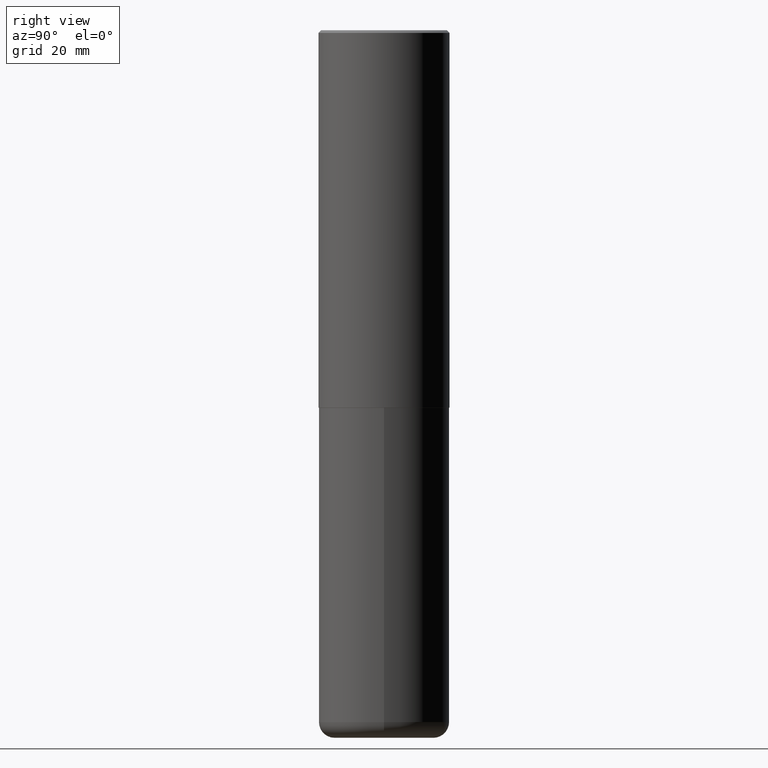
[diagram: clean part render]
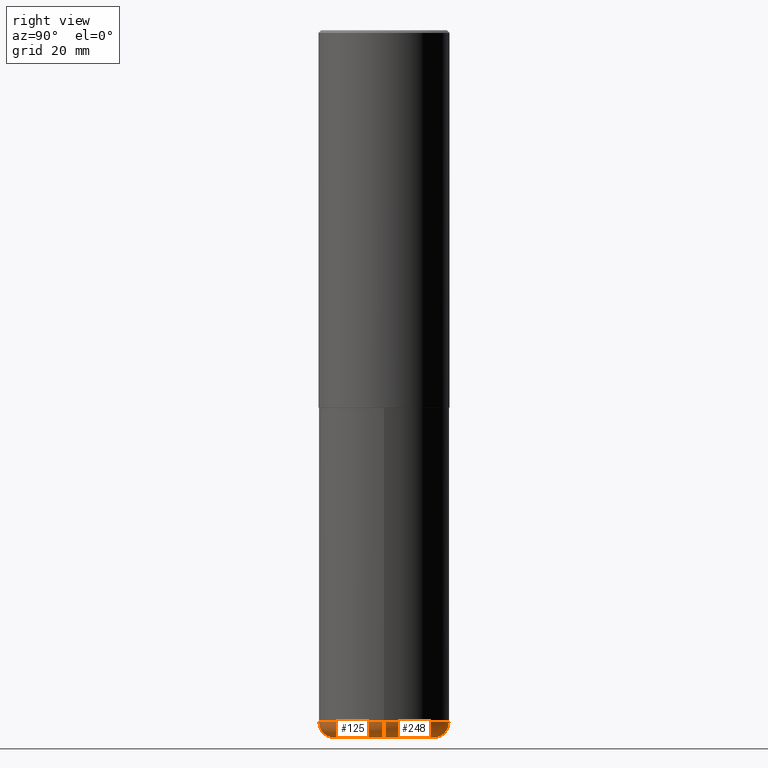
[diagram: same view with one multi-face feature highlighted, each face labeled with its STEP entity id]
A machine part, right view. The highlighted faces form ONE feature: a constant-radius fillet chain: 2 tangent blend faces with common blend radius 2.9997 mm. The faces share edges in the B-rep.
Their STEP definitions:
[1] entity #125 (Torus):
#8 = EDGE_CURVE ( 'NONE', #206, #271, #350, .T. ) ;
#11 = AXIS2_PLACEMENT_3D ( 'NONE', #226, #410, #257 ) ;
#15 = DIRECTION ( 'NONE',  ( 1.000000000000000000, -6.982962677686266711E-15, 4.883557194083112340E-29 ) ) ;
#52 = FACE_OUTER_BOUND ( 'NONE', #99, .T. ) ;
#58 = CARTESIAN_POINT ( 'NONE',  ( -0.4921499999999999764, -1.464794329579061349E-14, -5.196900000000000297 ) ) ;
#71 = ORIENTED_EDGE ( 'NONE', *, *, #8, .T. ) ;
#80 = DIRECTION ( 'NONE',  ( -2.445468806185136597E-29, 3.491481338843145583E-15, 1.000000000000000000 ) ) ;
#89 = DIRECTION ( 'NONE',  ( 1.000000000000000000, -6.982962677686265133E-15, 0.000000000000000000 ) ) ;
#91 = CARTESIAN_POINT ( 'NONE',  ( 1.299766670487400218E-28, -1.855722331595131973E-14, -5.315000000000000391 ) ) ;
#97 = EDGE_CURVE ( 'NONE', #270, #271, #131, .T. ) ;
#99 = EDGE_LOOP ( 'NONE', ( #198, #129, #71, #415 ) ) ;
#112 = CARTESIAN_POINT ( 'NONE',  ( 1.270885683886353718E-28, -1.814487936983394718E-14, -5.196900000000000297 ) ) ;
#116 = CARTESIAN_POINT ( 'NONE',  ( 0.3740499999999999381, -2.075685655942249311E-14, -5.196900000000000297 ) ) ;
#123 = AXIS2_PLACEMENT_3D ( 'NONE', #116, #276, #139 ) ;
#125 = ADVANCED_FACE ( 'NONE', ( #52 ), #396, .T. ) ;
#129 = ORIENTED_EDGE ( 'NONE', *, *, #252, .T. ) ;
#131 = CIRCLE ( 'NONE', #171, 0.4921500000000000319 ) ;
#138 = AXIS2_PLACEMENT_3D ( 'NONE', #112, #370, #15 ) ;
#139 = DIRECTION ( 'NONE',  ( 1.000000000000000000, -6.982962677686270655E-15, 0.000000000000000000 ) ) ;
#171 = AXIS2_PLACEMENT_3D ( 'NONE', #211, #80, #335 ) ;
#186 = CARTESIAN_POINT ( 'NONE',  ( 0.4921499999999999764, -2.158154445165724138E-14, -5.196900000000000297 ) ) ;
#190 = DIRECTION ( 'NONE',  ( -2.445468806185136597E-29, 3.491481338843145583E-15, 1.000000000000000000 ) ) ;
#198 = ORIENTED_EDGE ( 'NONE', *, *, #316, .F. ) ;
#204 = CIRCLE ( 'NONE', #264, 0.3740499999999999381 ) ;
#206 = VERTEX_POINT ( 'NONE', #255 ) ;
#211 = CARTESIAN_POINT ( 'NONE',  ( 1.270885683886353718E-28, -1.814487936983394718E-14, -5.196900000000000297 ) ) ;
#226 = CARTESIAN_POINT ( 'NONE',  ( -0.3740499999999999381, -1.548709426672329248E-14, -5.196900000000000297 ) ) ;
#252 = EDGE_CURVE ( 'NONE', #292, #206, #204, .T. ) ;
#255 = CARTESIAN_POINT ( 'NONE',  ( 0.3740499999999999381, -2.116920050553986882E-14, -5.315000000000000391 ) ) ;
#257 = DIRECTION ( 'NONE',  ( -1.000000000000000000, 7.105427357601001859E-15, 0.000000000000000000 ) ) ;
#264 = AXIS2_PLACEMENT_3D ( 'NONE', #91, #190, #89 ) ;
#270 = VERTEX_POINT ( 'NONE', #58 ) ;
#271 = VERTEX_POINT ( 'NONE', #186 ) ;
#276 = DIRECTION ( 'NONE',  ( -6.982962677686266711E-15, -1.000000000000000000, 3.491481338843145583E-15 ) ) ;
#284 = CARTESIAN_POINT ( 'NONE',  ( -0.3740499999999999381, -1.527369075431564084E-14, -5.315000000000000391 ) ) ;
#292 = VERTEX_POINT ( 'NONE', #284 ) ;
#315 = CIRCLE ( 'NONE', #11, 0.1181000000000000383 ) ;
#316 = EDGE_CURVE ( 'NONE', #292, #270, #315, .T. ) ;
#335 = DIRECTION ( 'NONE',  ( 1.000000000000000000, -6.982962677686265133E-15, 0.000000000000000000 ) ) ;
#350 = CIRCLE ( 'NONE', #123, 0.1181000000000000383 ) ;
#370 = DIRECTION ( 'NONE',  ( -2.445468806185136597E-29, 3.491481338843145583E-15, 1.000000000000000000 ) ) ;
#396 = TOROIDAL_SURFACE ( 'NONE', #138, 0.3740499999999999381, 0.1181000000000000660 ) ;
#410 = DIRECTION ( 'NONE',  ( 7.105427357601001859E-15, 1.000000000000000000, -3.491481338843145583E-15 ) ) ;
#415 = ORIENTED_EDGE ( 'NONE', *, *, #97, .F. ) ;
[2] entity #248 (Torus):
#1 = CIRCLE ( 'NONE', #272, 0.4921500000000000319 ) ;
#8 = EDGE_CURVE ( 'NONE', #206, #271, #350, .T. ) ;
#11 = AXIS2_PLACEMENT_3D ( 'NONE', #226, #410, #257 ) ;
#22 = DIRECTION ( 'NONE',  ( 1.000000000000000000, -6.982962677686265133E-15, 0.000000000000000000 ) ) ;
#27 = DIRECTION ( 'NONE',  ( -2.445468806185136597E-29, 3.491481338843145583E-15, 1.000000000000000000 ) ) ;
#58 = CARTESIAN_POINT ( 'NONE',  ( -0.4921499999999999764, -1.464794329579061349E-14, -5.196900000000000297 ) ) ;
#66 = AXIS2_PLACEMENT_3D ( 'NONE', #317, #374, #87 ) ;
#68 = EDGE_LOOP ( 'NONE', ( #109, #209, #203, #231 ) ) ;
#87 = DIRECTION ( 'NONE',  ( 1.000000000000000000, -6.982962677686265133E-15, 0.000000000000000000 ) ) ;
#101 = TOROIDAL_SURFACE ( 'NONE', #115, 0.3740499999999999381, 0.1181000000000000660 ) ;
#109 = ORIENTED_EDGE ( 'NONE', *, *, #329, .T. ) ;
#115 = AXIS2_PLACEMENT_3D ( 'NONE', #121, #27, #347 ) ;
#116 = CARTESIAN_POINT ( 'NONE',  ( 0.3740499999999999381, -2.075685655942249311E-14, -5.196900000000000297 ) ) ;
#121 = CARTESIAN_POINT ( 'NONE',  ( 1.270885683886353718E-28, -1.814487936983394718E-14, -5.196900000000000297 ) ) ;
#123 = AXIS2_PLACEMENT_3D ( 'NONE', #116, #276, #139 ) ;
#139 = DIRECTION ( 'NONE',  ( 1.000000000000000000, -6.982962677686270655E-15, 0.000000000000000000 ) ) ;
#186 = CARTESIAN_POINT ( 'NONE',  ( 0.4921499999999999764, -2.158154445165724138E-14, -5.196900000000000297 ) ) ;
#203 = ORIENTED_EDGE ( 'NONE', *, *, #262, .F. ) ;
#206 = VERTEX_POINT ( 'NONE', #255 ) ;
#209 = ORIENTED_EDGE ( 'NONE', *, *, #316, .T. ) ;
#226 = CARTESIAN_POINT ( 'NONE',  ( -0.3740499999999999381, -1.548709426672329248E-14, -5.196900000000000297 ) ) ;
#231 = ORIENTED_EDGE ( 'NONE', *, *, #8, .F. ) ;
#248 = ADVANCED_FACE ( 'NONE', ( #345 ), #101, .T. ) ;
#255 = CARTESIAN_POINT ( 'NONE',  ( 0.3740499999999999381, -2.116920050553986882E-14, -5.315000000000000391 ) ) ;
#257 = DIRECTION ( 'NONE',  ( -1.000000000000000000, 7.105427357601001859E-15, 0.000000000000000000 ) ) ;
#262 = EDGE_CURVE ( 'NONE', #271, #270, #1, .T. ) ;
#270 = VERTEX_POINT ( 'NONE', #58 ) ;
#271 = VERTEX_POINT ( 'NONE', #186 ) ;
#272 = AXIS2_PLACEMENT_3D ( 'NONE', #287, #313, #22 ) ;
#276 = DIRECTION ( 'NONE',  ( -6.982962677686266711E-15, -1.000000000000000000, 3.491481338843145583E-15 ) ) ;
#284 = CARTESIAN_POINT ( 'NONE',  ( -0.3740499999999999381, -1.527369075431564084E-14, -5.315000000000000391 ) ) ;
#287 = CARTESIAN_POINT ( 'NONE',  ( 1.270885683886353718E-28, -1.814487936983394718E-14, -5.196900000000000297 ) ) ;
#292 = VERTEX_POINT ( 'NONE', #284 ) ;
#309 = CIRCLE ( 'NONE', #66, 0.3740499999999999381 ) ;
#313 = DIRECTION ( 'NONE',  ( -2.445468806185136597E-29, 3.491481338843145583E-15, 1.000000000000000000 ) ) ;
#315 = CIRCLE ( 'NONE', #11, 0.1181000000000000383 ) ;
#316 = EDGE_CURVE ( 'NONE', #292, #270, #315, .T. ) ;
#317 = CARTESIAN_POINT ( 'NONE',  ( 1.299766670487400218E-28, -1.855722331595131973E-14, -5.315000000000000391 ) ) ;
#329 = EDGE_CURVE ( 'NONE', #206, #292, #309, .T. ) ;
#345 = FACE_OUTER_BOUND ( 'NONE', #68, .T. ) ;
#347 = DIRECTION ( 'NONE',  ( 1.000000000000000000, -6.982962677686266711E-15, 4.883557194083112340E-29 ) ) ;
#350 = CIRCLE ( 'NONE', #123, 0.1181000000000000383 ) ;
#374 = DIRECTION ( 'NONE',  ( -2.445468806185136597E-29, 3.491481338843145583E-15, 1.000000000000000000 ) ) ;
#410 = DIRECTION ( 'NONE',  ( 7.105427357601001859E-15, 1.000000000000000000, -3.491481338843145583E-15 ) ) ;